MODEL slx_4c04438753d9
KIND model
CONFIG AbsTol = auto
CONFIG EnableMultiTasking = off
CONFIG FixedStep = auto
CONFIG MaxStep = auto
CONFIG MinStep = auto
CONFIG RelTol = 1e-3
CONFIG SampleTimeConstraint = Unconstrained
CONFIG Solver = FixedStepAuto
CONFIG SolverName = FixedStepAuto
CONFIG StartTime = 0.0
CONFIG StopTime = t_sim
BLOCK [Reference] Actual Door  REF=simulink/Additional Math
& Discrete/Additional
Discrete/Transfer Fcn
Direct Form II
  Ports = [1, 1]
  SourceBlock = simulink/Additional Math\n& Discrete/Additional\nDiscrete/Transfer Fcn\nDirect Form II
  SourceProductBaseCode = SL
  SourceProductName = Simulink
  SourceType = Transfer Fcn Direct Form II
BLOCK [Reference] Band-Limited White Noise1  REF=simulink/Sources/Band-Limited
White Noise
  Ports = [0, 1]
  SourceBlock = simulink/Sources/Band-Limited\nWhite Noise
  SourceProductBaseCode = SL
  SourceProductName = Simulink
  SourceType = Band-Limited White Noise.
BLOCK [Reference] Band-Limited White Noise2  REF=simulink/Sources/Band-Limited
White Noise
  Ports = [0, 1]
  SourceBlock = simulink/Sources/Band-Limited\nWhite Noise
  SourceProductBaseCode = SL
  SourceProductName = Simulink
  SourceType = Band-Limited White Noise.
BLOCK [Constant] Constant
  Value = 0.9
BLOCK [DiscreteTransferFcn] Discrete Transfer Fcn
  Denominator = [1 0 0 0 ]
  InputPortMap = u0
  Numerator = [1.0000   -1.6961    0.4012    0.3000]
  Ports = [1, 1]
BLOCK [Gain] Gain
  Gain = -1
  OutDataTypeStr = Inherit: Inherit via internal rule
  ParamDataTypeStr = Inherit: Inherit via internal rule
  SaturateOnIntegerOverflow = off
BLOCK [Switch] MODEL Switch
  Criteria = u2 > Threshold
  InputSameDT = off
  SaturateOnIntegerOverflow = off
  Threshold = -1.5
BLOCK [Memory] Memory
BLOCK [Product] Product
  InputSameDT = off
  OutDataTypeStr = Inherit: Inherit via internal rule
  Ports = [2, 1]
  RndMeth = Floor
  SaturateOnIntegerOverflow = off
BLOCK [Reference] Ramp  REF=simulink/Sources/Ramp
  Ports = [0, 1]
  SourceBlock = simulink/Sources/Ramp
  SourceProductBaseCode = SL
  SourceProductName = Simulink
  SourceType = Ramp
BLOCK [Saturate] Saturation
  InputPortMap = u0
  Ports = [1, 1]
  UpperLimit = F
BLOCK [Scope] Scope
  Floating = off
  NumInputPorts = 2
  Ports = [2]
  ScopeSpecificationString = Simulink.scopes.TimeScopeBlockCfg('CurrentConfiguration', extmgr.ConfigurationSet(extmgr.Configuration('Core','General UI',true),extmgr.Configuration('Core','Source UI',true),extmgr.Configuration('Sources','WiredSimulink',true),extmgr.Configuration('Visuals','Time Domain',true,'SerializedDisplays',{struct('MinYLimReal','-0.65511','MaxYLimReal','5.89595','YLabelReal','','MinYLimMag','0.00000','MaxY...<+1440ch>
BLOCK [Scope] Scope1
  Floating = off
  NumInputPorts = 1
  Ports = [1]
  ScopeSpecificationString = Simulink.scopes.TimeScopeBlockCfg('CurrentConfiguration', extmgr.ConfigurationSet(extmgr.Configuration('Core','General UI',true),extmgr.Configuration('Core','Source UI',true),extmgr.Configuration('Sources','WiredSimulink',true,'DataLoggingVariableName','ScopeData1'),extmgr.Configuration('Visuals','Time Domain',true,'SerializedDisplays',{struct('MinYLimReal','-2.39975','MaxYLimReal','3.59997','YLab...<+1540ch>
BLOCK [Scope] Scope11
  Floating = off
  NumInputPorts = 1
  Ports = [1]
  ScopeSpecificationString = Simulink.scopes.TimeScopeBlockCfg('CurrentConfiguration', extmgr.ConfigurationSet(extmgr.Configuration('Core','General UI',true),extmgr.Configuration('Core','Source UI',true),extmgr.Configuration('Sources','WiredSimulink',true,'DataLoggingVariableName','ScopeData2'),extmgr.Configuration('Visuals','Time Domain',true,'SerializedDisplays',{struct('MinYLimReal','-0.125','MaxYLimReal','1.125','YLabelRe...<+2139ch>
BLOCK [Scope] Scope2
  Floating = off
  NumInputPorts = 1
  Ports = [1]
  ScopeSpecificationString = Simulink.scopes.TimeScopeBlockCfg('CurrentConfiguration', extmgr.ConfigurationSet(extmgr.Configuration('Core','General UI',true),extmgr.Configuration('Core','Source UI',true),extmgr.Configuration('Sources','WiredSimulink',true,'DataLoggingVariableName','ScopeData2'),extmgr.Configuration('Visuals','Time Domain',true,'SerializedDisplays',{struct('MinYLimReal','0.9','MaxYLimReal','1.1','YLabelReal','...<+1346ch>
BLOCK [Scope] Scope3
  Floating = off
  NumInputPorts = 2
  Ports = [2]
  ScopeSpecificationString = Simulink.scopes.TimeScopeBlockCfg('CurrentConfiguration', extmgr.ConfigurationSet(extmgr.Configuration('Core','General UI',true),extmgr.Configuration('Core','Source UI',true),extmgr.Configuration('Sources','WiredSimulink',true,'DataLoggingVariableName','ScopeData3'),extmgr.Configuration('Visuals','Time Domain',true,'SerializedDisplays',{struct('MinYLimReal','-20.12727','MaxYLimReal','18.51736','YL...<+1492ch>
BLOCK [Scope] Scope4
  Floating = off
  NumInputPorts = 1
  Ports = [1]
  ScopeSpecificationString = Simulink.scopes.TimeScopeBlockCfg('CurrentConfiguration', extmgr.ConfigurationSet(extmgr.Configuration('Core','General UI',true),extmgr.Configuration('Core','Source UI',true),extmgr.Configuration('Sources','WiredSimulink',true,'DataLoggingVariableName','ScopeData4'),extmgr.Configuration('Visuals','Time Domain',true,'SerializedDisplays',{struct('MinYLimReal','-4.59065','MaxYLimReal','4.42768','YLab...<+1418ch>
BLOCK [Scope] Scope5
  Floating = off
  NumInputPorts = 1
  Ports = [1]
  ScopeSpecificationString = Simulink.scopes.TimeScopeBlockCfg('CurrentConfiguration', extmgr.ConfigurationSet(extmgr.Configuration('Core','General UI',true),extmgr.Configuration('Core','Source UI',true),extmgr.Configuration('Sources','WiredSimulink',true,'DataLoggingVariableName','ScopeData1'),extmgr.Configuration('Visuals','Time Domain',true,'SerializedDisplays',{struct('MinYLimReal','-0.125','MaxYLimReal','1.125','YLabelRe...<+2110ch>
BLOCK [Scope] Scope6
  Floating = off
  NumInputPorts = 1
  Ports = [1]
  ScopeSpecificationString = Simulink.scopes.TimeScopeBlockCfg('CurrentConfiguration', extmgr.ConfigurationSet(extmgr.Configuration('Core','General UI',true),extmgr.Configuration('Core','Source UI',true),extmgr.Configuration('Sources','WiredSimulink',true,'DataLoggingVariableName','ScopeData1'),extmgr.Configuration('Visuals','Time Domain',true,'SerializedDisplays',{struct('MinYLimReal','-7.03217','MaxYLimReal','10.06911','YLa...<+1419ch>
BLOCK [Scope] Scope7
  Floating = off
  NumInputPorts = 1
  Ports = [1]
  ScopeSpecificationString = Simulink.scopes.TimeScopeBlockCfg('CurrentConfiguration', extmgr.ConfigurationSet(extmgr.Configuration('Core','General UI',true),extmgr.Configuration('Core','Source UI',true),extmgr.Configuration('Sources','WiredSimulink',true,'DataLoggingVariableName','ScopeData1'),extmgr.Configuration('Visuals','Time Domain',true,'SerializedDisplays',{struct('MinYLimReal','-0.37175','MaxYLimReal','3.37464','YLab...<+1503ch>
BLOCK [Scope] Scope8
  Floating = off
  NumInputPorts = 1
  Ports = [1]
  ScopeSpecificationString = Simulink.scopes.TimeScopeBlockCfg('CurrentConfiguration', extmgr.ConfigurationSet(extmgr.Configuration('Core','General UI',true),extmgr.Configuration('Core','Source UI',true),extmgr.Configuration('Sources','WiredSimulink',true,'DataLoggingVariableName','ScopeData2'),extmgr.Configuration('Visuals','Time Domain',true,'SerializedDisplays',{struct('MinYLimReal','-2.98205','MaxYLimReal','3.66467','YLab...<+1466ch>
BLOCK [Scope] Scope9
  Floating = off
  NumInputPorts = 1
  Ports = [1]
  ScopeSpecificationString = Simulink.scopes.TimeScopeBlockCfg('CurrentConfiguration', extmgr.ConfigurationSet(extmgr.Configuration('Core','General UI',true),extmgr.Configuration('Core','Source UI',true),extmgr.Configuration('Sources','WiredSimulink',true,'DataLoggingVariableName','ScopeData2'),extmgr.Configuration('Visuals','Time Domain',true,'SerializedDisplays',{struct('MinYLimReal','-7.21228','MaxYLimReal','8.89005','YLab...<+1436ch>
BLOCK [Sum] Sum1
  IconShape = round
  InputSameDT = off
  Inputs = ++|
  OutDataTypeStr = Inherit: Inherit via internal rule
  Ports = [2, 1]
  SaturateOnIntegerOverflow = off
BLOCK [Sum] Sum2
  IconShape = round
  InputSameDT = off
  Inputs = +||+
  OutDataTypeStr = Inherit: Inherit via internal rule
  Ports = [2, 1]
  SaturateOnIntegerOverflow = off
BLOCK [Sum] Sum3
  IconShape = round
  InputSameDT = off
  Inputs = +-
  OutDataTypeStr = Inherit: Inherit via internal rule
  Ports = [2, 1]
  SaturateOnIntegerOverflow = off
BLOCK [Sum] Sum5
  IconShape = round
  InputSameDT = off
  Inputs = +-
  OutDataTypeStr = Inherit: Inherit via internal rule
  Ports = [2, 1]
  SaturateOnIntegerOverflow = off
BLOCK [Switch] Switch
  Criteria = u2 > Threshold
  InputSameDT = off
  SaturateOnIntegerOverflow = off
  Threshold = 0.9
BLOCK [Switch] Switch2
  Criteria = u2 > Threshold
  InputSameDT = off
  SaturateOnIntegerOverflow = off
  Threshold = -1.5
BLOCK [ToWorkspace] To Workspace
  FixptAsFi = on
  MaxDataPoints = inf
  Ports = [1]
  SampleTime = -1
  SaveFormat = Structure With Time
  VariableName = theta
BLOCK [ToWorkspace] To Workspace1
  FixptAsFi = on
  MaxDataPoints = inf
  Ports = [1]
  SampleTime = -1
  SaveFormat = Structure With Time
  VariableName = lambda
BLOCK [ToWorkspace] To Workspace2
  FixptAsFi = on
  MaxDataPoints = inf
  Ports = [1]
  SampleTime = -1
  SaveFormat = Structure With Time
  VariableName = y
BLOCK [ToWorkspace] To Workspace3
  FixptAsFi = on
  MaxDataPoints = inf
  Ports = [1]
  SampleTime = -1
  SaveFormat = Structure With Time
  VariableName = yhat
BLOCK [ToWorkspace] To Workspace4
  FixptAsFi = on
  MaxDataPoints = inf
  Ports = [1]
  SampleTime = -1
  SaveFormat = Structure With Time
  VariableName = noise
BLOCK [ToWorkspace] To Workspace5
  FixptAsFi = on
  MaxDataPoints = inf
  Ports = [1]
  SampleTime = -1
  SaveFormat = Structure With Time
  VariableName = prob_c
BLOCK [ToWorkspace] To Workspace6
  FixptAsFi = on
  MaxDataPoints = inf
  Ports = [1]
  SampleTime = -1
  SaveFormat = Structure With Time
  VariableName = b_c
BLOCK [Constant] adap_init.F 
  Value = noise_gain
BLOCK [Constant] adap_init.alpha_end2
  Value = adap_init.Alg
BLOCK [SubSystem] break Simulink
  Ports = [1]
  RequestExecContextInheritance = off
BLOCK [Constant] break Simulink/Constant2
  Value = 0.1
BLOCK [Demux] break Simulink/Demux
  DisplayOption = bar
  Outputs = 2
  Ports = [1, 2]
BLOCK [RelationalOperator] break Simulink/GreaterThan
  InputSameDT = off
  Operator = >
  OutDataTypeStr = boolean
  Ports = [2, 1]
  RndMeth = Simplest
BLOCK [Stop] break Simulink/Stop Simulation
BLOCK [Inport] break Simulink/b_c
  IconDisplay = Port number
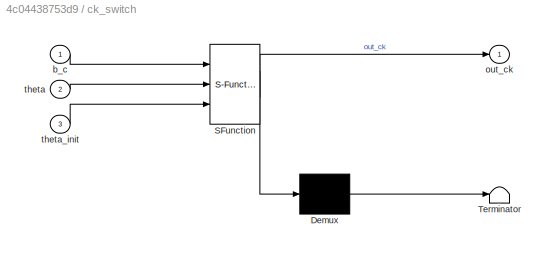
BLOCK [SubSystem] ck_switch
  ErrorFcn = Stateflow.Translate.translate
  PermitHierarchicalResolution = ExplicitOnly
  Ports = [3, 1]
  RequestExecContextInheritance = off
  SFBlockType = MATLAB Function
  TreatAsAtomicUnit = on
BLOCK [Demux] ck_switch/ Demux 
  Outputs = 1
  Ports = [1, 1]
BLOCK [S-Function] ck_switch/ SFunction 
  EnableBusSupport = on
  FunctionName = sf_sfun
  PortCounts = [3 2]
  Ports = [3, 2]
  SFcnIsStateOwnerBlock = off
  SFunctionDeploymentMode = off
  Tag = Stateflow S-Function DOOR_prob_done 2
BLOCK [Terminator] ck_switch/ Terminator 
BLOCK [Inport] ck_switch/b_c
  IconDisplay = Port number
BLOCK [Outport] ck_switch/out_ck
  IconDisplay = Port number
BLOCK [Inport] ck_switch/theta
  IconDisplay = Port number
  Port = 2
BLOCK [Inport] ck_switch/theta_init
  IconDisplay = Port number
  Port = 3
BLOCK [SubSystem] parameter ID
  Ports = [2, 3]
  RequestExecContextInheritance = off
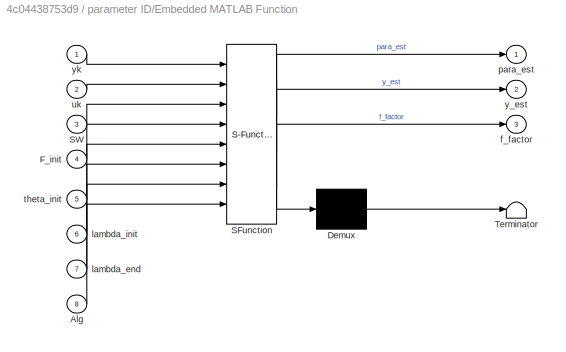
BLOCK [SubSystem] parameter ID/Embedded MATLAB Function
  ErrorFcn = Stateflow.Translate.translate
  PermitHierarchicalResolution = ExplicitOnly
  Ports = [8, 3]
  RequestExecContextInheritance = off
  SFBlockType = MATLAB Function
  TreatAsAtomicUnit = on
BLOCK [Demux] parameter ID/Embedded MATLAB Function/ Demux 
  Outputs = 1
  Ports = [1, 1]
BLOCK [S-Function] parameter ID/Embedded MATLAB Function/ SFunction 
  EnableBusSupport = on
  FunctionName = sf_sfun
  PortCounts = [8 4]
  Ports = [8, 4]
  SFcnIsStateOwnerBlock = off
  SFunctionDeploymentMode = off
  Tag = Stateflow S-Function DOOR_prob_done 3
BLOCK [Terminator] parameter ID/Embedded MATLAB Function/ Terminator 
BLOCK [Inport] parameter ID/Embedded MATLAB Function/Alg
  IconDisplay = Port number
  Port = 8
BLOCK [Inport] parameter ID/Embedded MATLAB Function/F_init
  IconDisplay = Port number
  Port = 4
BLOCK [Inport] parameter ID/Embedded MATLAB Function/SW
  IconDisplay = Port number
  Port = 3
BLOCK [Outport] parameter ID/Embedded MATLAB Function/f_factor
  IconDisplay = Port number
  Port = 3
BLOCK [Inport] parameter ID/Embedded MATLAB Function/lambda_end
  IconDisplay = Port number
  Port = 7
BLOCK [Inport] parameter ID/Embedded MATLAB Function/lambda_init
  IconDisplay = Port number
  Port = 6
BLOCK [Outport] parameter ID/Embedded MATLAB Function/para_est
  IconDisplay = Port number
BLOCK [Inport] parameter ID/Embedded MATLAB Function/theta_init
  IconDisplay = Port number
  Port = 5
BLOCK [Inport] parameter ID/Embedded MATLAB Function/uk
  IconDisplay = Port number
  Port = 2
BLOCK [Outport] parameter ID/Embedded MATLAB Function/y_est
  IconDisplay = Port number
  Port = 2
BLOCK [Inport] parameter ID/Embedded MATLAB Function/yk
  IconDisplay = Port number
BLOCK [Product] parameter ID/Product2
  InputSameDT = off
  OutDataTypeStr = Inherit: Inherit via internal rule
  Ports = [2, 1]
  SaturateOnIntegerOverflow = off
BLOCK [Step] parameter ID/Step1
  SampleTime = Ts
  Time = t_AdapOn
BLOCK [Step] parameter ID/Step2
  After = 0
  Before = 1
  SampleTime = Ts
  Time = t_AdapOff
BLOCK [Constant] parameter ID/adap_init.F 
  Value = adap_init.F
BLOCK [Constant] parameter ID/adap_init.alpha_end1
  Value = adap_init.Alg
BLOCK [Constant] parameter ID/adap_init.lambda_end
  Value = adap_init.lambda_end
BLOCK [Constant] parameter ID/adap_init.lambda_init
  Value = adap_init.lambda_init
BLOCK [Constant] parameter ID/adap_init.theta
  Value = adap_init.theta
BLOCK [Outport] parameter ID/lambda
  IconDisplay = Port number
  Port = 3
BLOCK [Outport] parameter ID/theta
  IconDisplay = Port number
BLOCK [Inport] parameter ID/uk
  IconDisplay = Port number
  Port = 2
BLOCK [Outport] parameter ID/yest
  IconDisplay = Port number
  Port = 2
BLOCK [Inport] parameter ID/yk
  IconDisplay = Port number
BLOCK [SubSystem] probability estimation
  Ports = [1, 1]
  RequestExecContextInheritance = off
BLOCK [Constant] probability estimation/Constant
BLOCK [Gain] probability estimation/Gain
  Gain = -1000
  OutDataTypeStr = Inherit: Inherit via internal rule
  ParamDataTypeStr = Inherit: Inherit via internal rule
  SaturateOnIntegerOverflow = off
BLOCK [Inport] probability estimation/In1
  IconDisplay = Port number
BLOCK [Math] probability estimation/Math Function
  Operator = square
  Ports = [1, 1]
BLOCK [Math] probability estimation/Math Function1
  Ports = [1, 1]
BLOCK [Memory] probability estimation/Memory1
  InitialCondition = Init_ck
BLOCK [Sum] probability estimation/Minus
  InputSameDT = off
  Inputs = +-
  OutDataTypeStr = Inherit: Inherit via internal rule
  Ports = [2, 1]
  SaturateOnIntegerOverflow = off
BLOCK [SubSystem] probability estimation/Normalize
  Ports = [2, 1]
  RequestExecContextInheritance = off
BLOCK [Sum] probability estimation/Normalize/Add
  InputSameDT = off
  OutDataTypeStr = Inherit: Inherit via internal rule
  Ports = [2, 1]
  SaturateOnIntegerOverflow = off
BLOCK [Inport] probability estimation/Normalize/In1
  IconDisplay = Port number
BLOCK [Inport] probability estimation/Normalize/In2
  IconDisplay = Port number
  Port = 2
BLOCK [Product] probability estimation/Normalize/Matrix Multiply1
  InputSameDT = off
  Inputs = */
  OutDataTypeStr = Inherit: Inherit via internal rule
  Ports = [2, 1]
  RndMeth = Floor
  SaturateOnIntegerOverflow = off
BLOCK [Mux] probability estimation/Normalize/Mux
  DisplayOption = bar
  Inputs = 2
  Ports = [2, 1]
BLOCK [Outport] probability estimation/Normalize/Out1
  IconDisplay = Port number
BLOCK [Outport] probability estimation/Out1
  IconDisplay = Port number
BLOCK [SubSystem] probability estimation/Prior update
  Ports = [1, 1]
  RequestExecContextInheritance = off
BLOCK [Inport] probability estimation/Prior update/In1
  IconDisplay = Port number
BLOCK [Product] probability estimation/Prior update/Matrix Multiply
  InputSameDT = off
  Multiplication = Matrix(*)
  OutDataTypeStr = Inherit: Inherit via internal rule
  Ports = [2, 1]
  RndMeth = Floor
  SaturateOnIntegerOverflow = off
BLOCK [Outport] probability estimation/Prior update/Out1
  IconDisplay = Port number
BLOCK [Constant] probability estimation/Prior update/Process model
  Value = Gpm
  VectorParams1D = off
BLOCK [SubSystem] probability estimation/Subsystem
  Ports = [3, 2]
  RequestExecContextInheritance = off
BLOCK [Demux] probability estimation/Subsystem/Demux
  DisplayOption = bar
  Outputs = 2
  Ports = [1, 2]
BLOCK [Inport] probability estimation/Subsystem/In1
  IconDisplay = Port number
BLOCK [Inport] probability estimation/Subsystem/In2
  IconDisplay = Port number
  Port = 2
BLOCK [Inport] probability estimation/Subsystem/In3
  IconDisplay = Port number
  Port = 3
BLOCK [Outport] probability estimation/Subsystem/Out1
  IconDisplay = Port number
BLOCK [Outport] probability estimation/Subsystem/Out2
  IconDisplay = Port number
  Port = 2
BLOCK [Product] probability estimation/Subsystem/Product
  InputSameDT = off
  OutDataTypeStr = Inherit: Inherit via internal rule
  Ports = [2, 1]
  RndMeth = Floor
  SaturateOnIntegerOverflow = off
BLOCK [Product] probability estimation/Subsystem/Product1
  InputSameDT = off
  OutDataTypeStr = Inherit: Inherit via internal rule
  Ports = [2, 1]
  RndMeth = Floor
  SaturateOnIntegerOverflow = off
BLOCK [SubSystem] probability estimation1
  Ports = [1, 1]
  RequestExecContextInheritance = off
BLOCK [Constant] probability estimation1/Constant
BLOCK [Gain] probability estimation1/Gain
  Gain = -1000
  OutDataTypeStr = Inherit: Inherit via internal rule
  ParamDataTypeStr = Inherit: Inherit via internal rule
  SaturateOnIntegerOverflow = off
BLOCK [Inport] probability estimation1/In1
  IconDisplay = Port number
BLOCK [Math] probability estimation1/Math Function
  Operator = square
  Ports = [1, 1]
BLOCK [Math] probability estimation1/Math Function1
  Ports = [1, 1]
BLOCK [Memory] probability estimation1/Memory1
  InitialCondition = Init_ck
BLOCK [Sum] probability estimation1/Minus
  InputSameDT = off
  Inputs = +-
  OutDataTypeStr = Inherit: Inherit via internal rule
  Ports = [2, 1]
  SaturateOnIntegerOverflow = off
BLOCK [SubSystem] probability estimation1/Normalize
  Ports = [2, 1]
  RequestExecContextInheritance = off
BLOCK [Sum] probability estimation1/Normalize/Add
  InputSameDT = off
  OutDataTypeStr = Inherit: Inherit via internal rule
  Ports = [2, 1]
  SaturateOnIntegerOverflow = off
BLOCK [Inport] probability estimation1/Normalize/In1
  IconDisplay = Port number
BLOCK [Inport] probability estimation1/Normalize/In2
  IconDisplay = Port number
  Port = 2
BLOCK [Product] probability estimation1/Normalize/Matrix Multiply1
  InputSameDT = off
  Inputs = */
  OutDataTypeStr = Inherit: Inherit via internal rule
  Ports = [2, 1]
  RndMeth = Floor
  SaturateOnIntegerOverflow = off
BLOCK [Mux] probability estimation1/Normalize/Mux
  DisplayOption = bar
  Inputs = 2
  Ports = [2, 1]
BLOCK [Outport] probability estimation1/Normalize/Out1
  IconDisplay = Port number
BLOCK [Outport] probability estimation1/Out1
  IconDisplay = Port number
BLOCK [SubSystem] probability estimation1/Prior update
  Ports = [1, 1]
  RequestExecContextInheritance = off
BLOCK [Inport] probability estimation1/Prior update/In1
  IconDisplay = Port number
BLOCK [Product] probability estimation1/Prior update/Matrix Multiply
  InputSameDT = off
  Multiplication = Matrix(*)
  OutDataTypeStr = Inherit: Inherit via internal rule
  Ports = [2, 1]
  RndMeth = Floor
  SaturateOnIntegerOverflow = off
BLOCK [Outport] probability estimation1/Prior update/Out1
  IconDisplay = Port number
BLOCK [Constant] probability estimation1/Prior update/Process model
  Value = Gpm
  VectorParams1D = off
BLOCK [Scope] probability estimation1/Scope1
  Floating = off
  NumInputPorts = 1
  Ports = [1]
  ScopeSpecificationString = Simulink.scopes.TimeScopeBlockCfg('CurrentConfiguration', extmgr.ConfigurationSet(extmgr.Configuration('Core','General UI',true),extmgr.Configuration('Core','Source UI',true),extmgr.Configuration('Sources','WiredSimulink',true,'DataLoggingVariableName','ScopeData2'),extmgr.Configuration('Visuals','Time Domain',true,'SerializedDisplays',{struct('MinYLimReal','-0.125','MaxYLimReal','1.125','YLabelRe...<+2183ch>
BLOCK [Scope] probability estimation1/Scope11
  Floating = off
  NumInputPorts = 1
  Ports = [1]
  ScopeSpecificationString = Simulink.scopes.TimeScopeBlockCfg('CurrentConfiguration', extmgr.ConfigurationSet(extmgr.Configuration('Core','General UI',true),extmgr.Configuration('Core','Source UI',true),extmgr.Configuration('Sources','WiredSimulink',true,'DataLoggingVariableName','ScopeData1'),extmgr.Configuration('Visuals','Time Domain',true,'SerializedDisplays',{struct('MinYLimReal','-0.125','MaxYLimReal','1.125','YLabelRe...<+2194ch>
BLOCK [Scope] probability estimation1/Scope2
  Floating = off
  NumInputPorts = 1
  Ports = [1]
  ScopeSpecificationString = Simulink.scopes.TimeScopeBlockCfg('CurrentConfiguration', extmgr.ConfigurationSet(extmgr.Configuration('Core','General UI',true),extmgr.Configuration('Core','Source UI',true),extmgr.Configuration('Sources','WiredSimulink',true,'DataLoggingVariableName','ScopeData3'),extmgr.Configuration('Visuals','Time Domain',true,'SerializedDisplays',{struct('MinYLimReal','-0.125','MaxYLimReal','1.125','YLabelRe...<+2174ch>
BLOCK [SubSystem] probability estimation1/Subsystem
  Ports = [3, 2]
  RequestExecContextInheritance = off
BLOCK [Demux] probability estimation1/Subsystem/Demux
  DisplayOption = bar
  Outputs = 2
  Ports = [1, 2]
BLOCK [Inport] probability estimation1/Subsystem/In1
  IconDisplay = Port number
BLOCK [Inport] probability estimation1/Subsystem/In2
  IconDisplay = Port number
  Port = 2
BLOCK [Inport] probability estimation1/Subsystem/In3
  IconDisplay = Port number
  Port = 3
BLOCK [Outport] probability estimation1/Subsystem/Out1
  IconDisplay = Port number
BLOCK [Outport] probability estimation1/Subsystem/Out2
  IconDisplay = Port number
  Port = 2
BLOCK [Product] probability estimation1/Subsystem/Product
  InputSameDT = off
  OutDataTypeStr = Inherit: Inherit via internal rule
  Ports = [2, 1]
  RndMeth = Floor
  SaturateOnIntegerOverflow = off
BLOCK [Product] probability estimation1/Subsystem/Product1
  InputSameDT = off
  OutDataTypeStr = Inherit: Inherit via internal rule
  Ports = [2, 1]
  RndMeth = Floor
  SaturateOnIntegerOverflow = off
ANNOTATION (root): Evaluation of PAA algorithms under various conditions Author: Liting Sun (<email>)
LINE Actual Door:1 -> Sum1:2
NET Band-Limited White Noise1:1 -> Product:2, To Workspace4:1
LINE Band-Limited White Noise2:1 -> Scope9:1
LINE Constant:1 -> Switch:1
LINE Discrete Transfer Fcn:1 -> Scope3:1
NET Gain:1 -> MODEL Switch:2, Switch2:2
LINE MODEL Switch:1 -> Sum5:2
LINE Memory:1 -> Switch2:3
NET Product:1 -> Scope4:1, Sum1:1
LINE Ramp:1 -> Saturation:1
LINE Saturation:1 -> Sum2:1
NET Sum1:1 -> MODEL Switch:3, Switch:2, Switch:3
NET Sum2:1 -> Actual Door:1, Discrete Transfer Fcn:1, Scope3:2, Scope6:1, parameter ID:2
LINE Sum3:1 -> probability estimation:1
LINE Sum5:1 -> probability estimation1:1
NET Switch2:1 -> Memory:1, Scope7:1
NET Switch:1 -> Scope:1, Sum3:1, Sum5:1, To Workspace2:1, parameter ID:1
LINE adap_init.F :1 -> Product:1
LINE adap_init.alpha_end2:1 -> ck_switch:3
LINE break Simulink/Constant2:1 -> break Simulink/GreaterThan:1
LINE break Simulink/Demux:1 -> break Simulink/GreaterThan:2
LINE break Simulink/GreaterThan:1 -> break Simulink/Stop Simulation:1
LINE break Simulink/b_c:1 -> break Simulink/Demux:1
NET ck_switch:1 -> Gain:1, Scope8:1
LINE parameter ID/Embedded MATLAB Function:1 -> parameter ID/theta:1
LINE parameter ID/Embedded MATLAB Function:2 -> parameter ID/yest:1
LINE parameter ID/Embedded MATLAB Function:3 -> parameter ID/lambda:1
LINE parameter ID/Product2:1 -> parameter ID/Embedded MATLAB Function:3
LINE parameter ID/Step1:1 -> parameter ID/Product2:1
LINE parameter ID/Step2:1 -> parameter ID/Product2:2
LINE parameter ID/adap_init.F :1 -> parameter ID/Embedded MATLAB Function:4
LINE parameter ID/adap_init.alpha_end1:1 -> parameter ID/Embedded MATLAB Function:8
LINE parameter ID/adap_init.lambda_end:1 -> parameter ID/Embedded MATLAB Function:7
LINE parameter ID/adap_init.lambda_init:1 -> parameter ID/Embedded MATLAB Function:6
LINE parameter ID/adap_init.theta:1 -> parameter ID/Embedded MATLAB Function:5
LINE parameter ID/uk:1 -> parameter ID/Embedded MATLAB Function:2
LINE parameter ID/yk:1 -> parameter ID/Embedded MATLAB Function:1
NET parameter ID:1 -> Scope1:1, Switch2:1, To Workspace:1, ck_switch:2
NET parameter ID:2 -> MODEL Switch:1, Scope:2, Sum3:2, To Workspace3:1
NET parameter ID:3 -> Scope2:1, To Workspace1:1
LINE probability estimation/Constant:1 -> probability estimation/Minus:1
LINE probability estimation/Gain:1 -> probability estimation/Math Function1:1
LINE probability estimation/In1:1 -> probability estimation/Math Function:1
NET probability estimation/Math Function1:1 -> probability estimation/Minus:2, probability estimation/Subsystem:1
LINE probability estimation/Math Function:1 -> probability estimation/Gain:1
LINE probability estimation/Memory1:1 -> probability estimation/Subsystem:2
LINE probability estimation/Minus:1 -> probability estimation/Subsystem:3
LINE probability estimation/Normalize/Add:1 -> probability estimation/Normalize/Matrix Multiply1:2
NET probability estimation/Normalize/In1:1 -> probability estimation/Normalize/Add:2, probability estimation/Normalize/Mux:1
NET probability estimation/Normalize/In2:1 -> probability estimation/Normalize/Add:1, probability estimation/Normalize/Mux:2
LINE probability estimation/Normalize/Matrix Multiply1:1 -> probability estimation/Normalize/Out1:1
LINE probability estimation/Normalize/Mux:1 -> probability estimation/Normalize/Matrix Multiply1:1
NET probability estimation/Normalize:1 -> probability estimation/Out1:1, probability estimation/Prior update:1
LINE probability estimation/Prior update/In1:1 -> probability estimation/Prior update/Matrix Multiply:1
LINE probability estimation/Prior update/Matrix Multiply:1 -> probability estimation/Prior update/Out1:1
LINE probability estimation/Prior update/Process model:1 -> probability estimation/Prior update/Matrix Multiply:2
LINE probability estimation/Prior update:1 -> probability estimation/Memory1:1
LINE probability estimation/Subsystem/Demux:1 -> probability estimation/Subsystem/Product:2
LINE probability estimation/Subsystem/Demux:2 -> probability estimation/Subsystem/Product1:2
LINE probability estimation/Subsystem/In1:1 -> probability estimation/Subsystem/Product:1
LINE probability estimation/Subsystem/In2:1 -> probability estimation/Subsystem/Demux:1
LINE probability estimation/Subsystem/In3:1 -> probability estimation/Subsystem/Product1:1
LINE probability estimation/Subsystem/Product1:1 -> probability estimation/Subsystem/Out2:1
LINE probability estimation/Subsystem/Product:1 -> probability estimation/Subsystem/Out1:1
LINE probability estimation/Subsystem:1 -> probability estimation/Normalize:1
LINE probability estimation/Subsystem:2 -> probability estimation/Normalize:2
LINE probability estimation1/Constant:1 -> probability estimation1/Minus:1
LINE probability estimation1/Gain:1 -> probability estimation1/Math Function1:1
LINE probability estimation1/In1:1 -> probability estimation1/Math Function:1
NET probability estimation1/Math Function1:1 -> probability estimation1/Minus:2, probability estimation1/Scope1:1, probability estimation1/Subsystem:1
LINE probability estimation1/Math Function:1 -> probability estimation1/Gain:1
LINE probability estimation1/Memory1:1 -> probability estimation1/Subsystem:2
NET probability estimation1/Minus:1 -> probability estimation1/Scope2:1, probability estimation1/Subsystem:3
LINE probability estimation1/Normalize/Add:1 -> probability estimation1/Normalize/Matrix Multiply1:2
NET probability estimation1/Normalize/In1:1 -> probability estimation1/Normalize/Add:2, probability estimation1/Normalize/Mux:1
NET probability estimation1/Normalize/In2:1 -> probability estimation1/Normalize/Add:1, probability estimation1/Normalize/Mux:2
LINE probability estimation1/Normalize/Matrix Multiply1:1 -> probability estimation1/Normalize/Out1:1
LINE probability estimation1/Normalize/Mux:1 -> probability estimation1/Normalize/Matrix Multiply1:1
NET probability estimation1/Normalize:1 -> probability estimation1/Out1:1, probability estimation1/Prior update:1, probability estimation1/Scope11:1
LINE probability estimation1/Prior update/In1:1 -> probability estimation1/Prior update/Matrix Multiply:1
LINE probability estimation1/Prior update/Matrix Multiply:1 -> probability estimation1/Prior update/Out1:1
LINE probability estimation1/Prior update/Process model:1 -> probability estimation1/Prior update/Matrix Multiply:2
LINE probability estimation1/Prior update:1 -> probability estimation1/Memory1:1
LINE probability estimation1/Subsystem/Demux:1 -> probability estimation1/Subsystem/Product:2
LINE probability estimation1/Subsystem/Demux:2 -> probability estimation1/Subsystem/Product1:2
LINE probability estimation1/Subsystem/In1:1 -> probability estimation1/Subsystem/Product:1
LINE probability estimation1/Subsystem/In2:1 -> probability estimation1/Subsystem/Demux:1
LINE probability estimation1/Subsystem/In3:1 -> probability estimation1/Subsystem/Product1:1
LINE probability estimation1/Subsystem/Product1:1 -> probability estimation1/Subsystem/Out2:1
LINE probability estimation1/Subsystem/Product:1 -> probability estimation1/Subsystem/Out1:1
LINE probability estimation1/Subsystem:1 -> probability estimation1/Normalize:1
LINE probability estimation1/Subsystem:2 -> probability estimation1/Normalize:2
NET probability estimation1:1 -> Scope11:1, To Workspace6:1, break Simulink:1
NET probability estimation:1 -> Scope5:1, To Workspace5:1, ck_switch:1
note: NET lines group one-source signal fan-out (src -> all destinations, sorted); 1:1 wires keep LINE
CHART ck_switch states=1 transitions=1
  STATE_LABEL 'eML_blk_kernel()'
  STATE_LABEL 'SCRIPT:\nfunction out_ck  = ck_switch(b_c,theta,theta_init) \n\npersistent N ck stor_th\nif isempty(N)\n    % initialize all necessary parameters     \n    N       = uint16(1);\n    ck      = 1; \n    stor_th = theta_init;\nend\n\nswitch(ck)\n    case 1\n        if b_c[1]<0.7\n            ck = 2;\n            \n        end\n        \n        if b_c[1]>0.7 \n            stor_th = theta;\n        end\n        \n        \n...<+179ch>'
CHART parameter ID/Embedded
MATLAB Function states=1 transitions=1
  STATE_LABEL 'eML_blk_kernel()'
  STATE_LABEL 'SCRIPT:\nfunction [para_est, y_est, f_factor] = PAA(yk,uk, SW, F_init,theta_init,lambda_init,lambda_end, Alg) %#eml\npersistent N y u phi F theta lambda yhat ehat ykhat ek vk iter phi_F_phi delta_theta;\npersistent ykhat_post ek_post flag_series_parallel theta_comp; \n% PAA algorithms implementation for two order systems: \n% two numberator parameters and two denominator parameters\n%                 b0...<+3593ch>'
